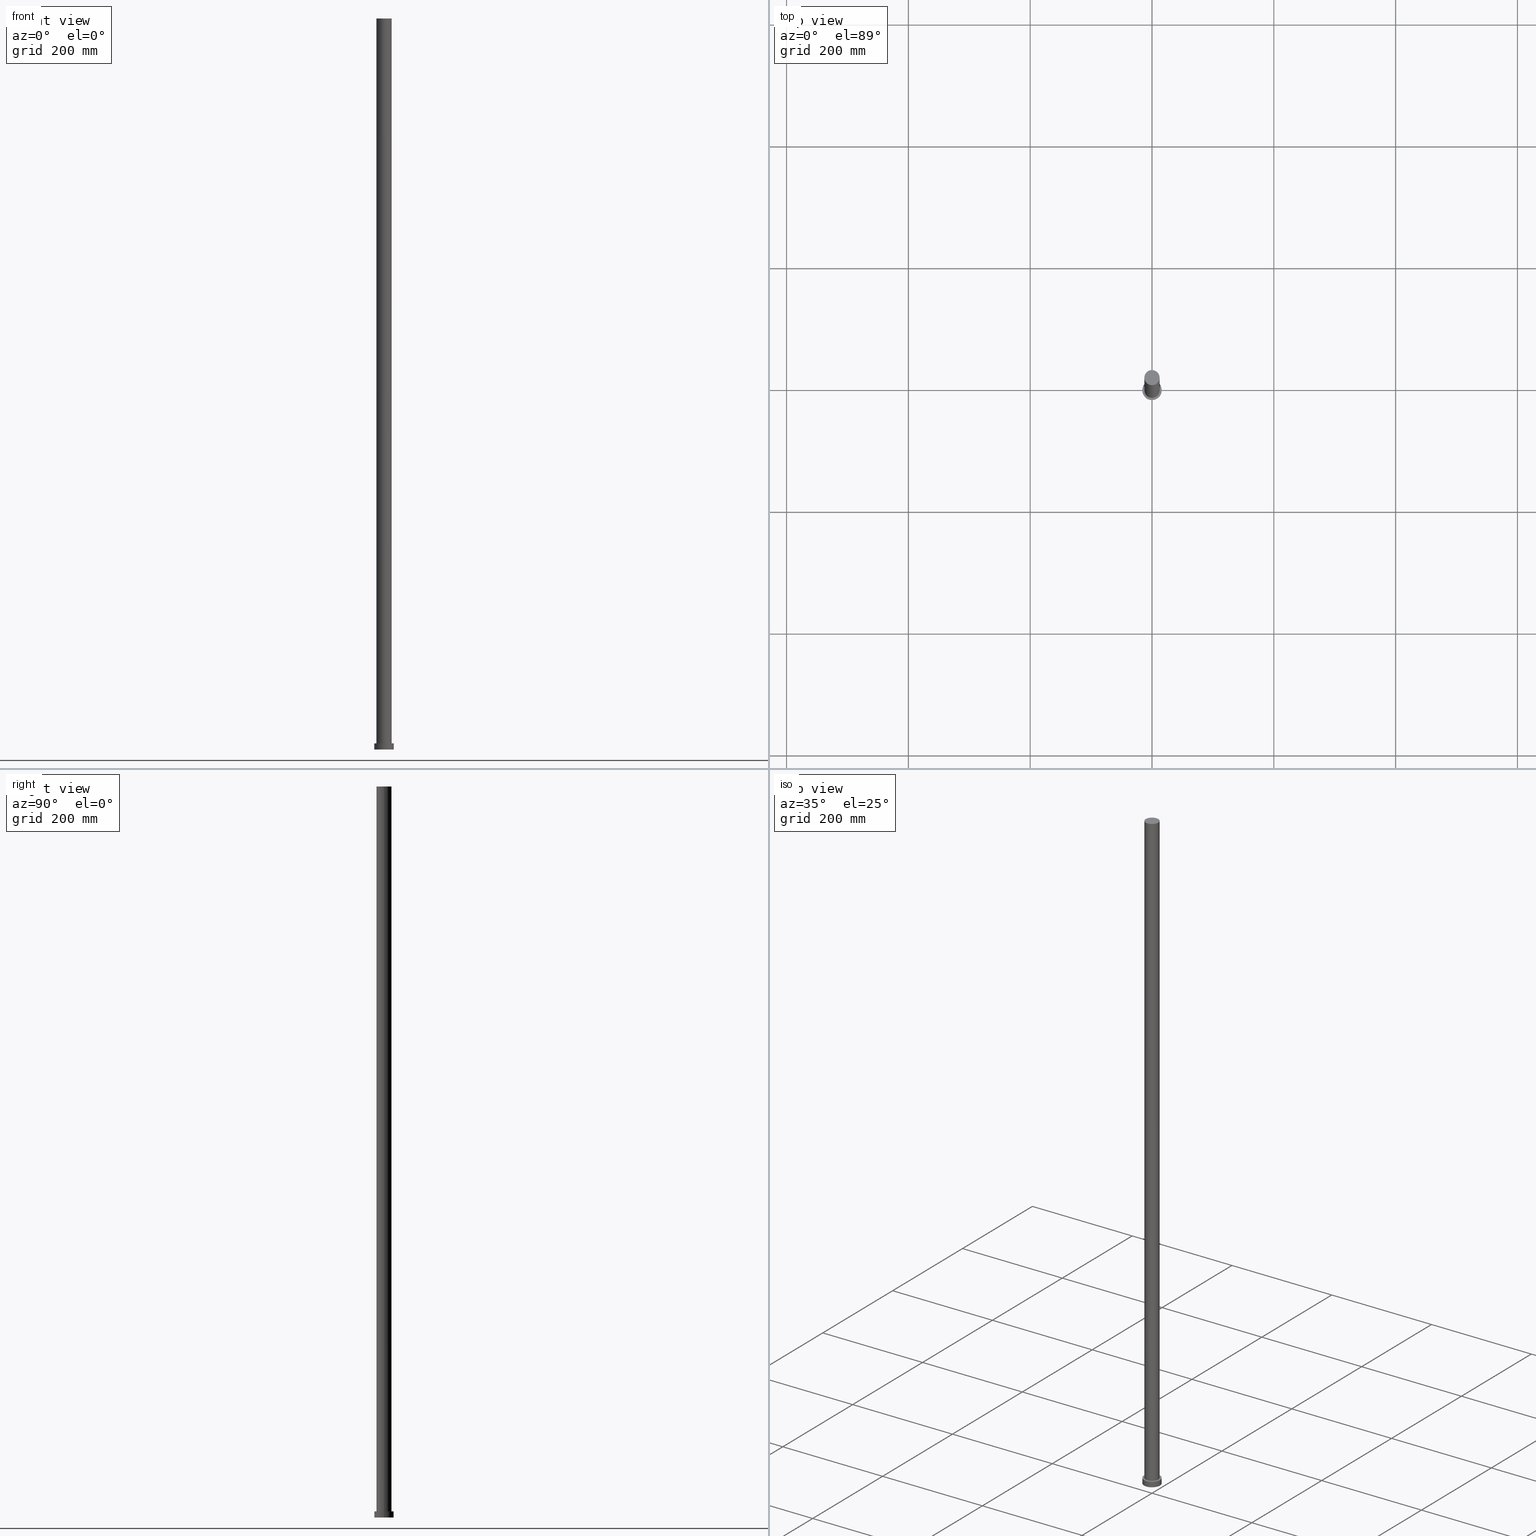
[diagram: canonical four-view strip — front | top / right | iso, engineering-drawing reading convention]
A machine part, canonical four-view strip (front | top / right | iso — engineering-drawing reading convention). The complete STEP part file that produces these views, byte-faithful:
ISO-10303-21;
HEADER;
FILE_DESCRIPTION (( 'STEP AP203' ),
    '1' );
FILE_NAME ('4acb.STEP',
    '2023-02-12T10:27:38',
    ( '' ),
    ( '' ),
    'SwSTEP 2.0',
    'SolidWorks 2019',
    '' );
FILE_SCHEMA (( 'CONFIG_CONTROL_DESIGN' ));
ENDSEC;

DATA;
#1 = EDGE_LOOP ( 'NONE', ( #230, #235, #72, #237 ) ) ;
#2 = CARTESIAN_POINT ( 'NONE',  ( 16.00000000000000000, 1.959434878635765131E-15, 10.00000000000000000 ) ) ;
#3 = EDGE_CURVE ( 'NONE', #148, #115, #66, .T. ) ;
#4 = DIRECTION ( 'NONE',  ( 1.000000000000000000, 0.000000000000000000, 0.000000000000000000 ) ) ;
#5 = CARTESIAN_POINT ( 'NONE',  ( -12.50000000000000000, 0.000000000000000000, 1200.000000000000000 ) ) ;
#6 = DIRECTION ( 'NONE',  ( 0.000000000000000000, 0.000000000000000000, 1.000000000000000000 ) ) ;
#7 = PERSON_AND_ORGANIZATION ( #50, #181 ) ;
#8 = DIRECTION ( 'NONE',  ( -1.000000000000000000, 0.000000000000000000, 0.000000000000000000 ) ) ;
#9 = LOCAL_TIME ( 11, 27, 38.00000000000000000, #202 ) ;
#10 = AXIS2_PLACEMENT_3D ( 'NONE', #117, #175, #41 ) ;
#11 = CARTESIAN_POINT ( 'NONE',  ( 0.000000000000000000, 0.000000000000000000, 10.00000000000000000 ) ) ;
#12 = DIRECTION ( 'NONE',  ( 0.000000000000000000, 0.000000000000000000, 1.000000000000000000 ) ) ;
#13 = CARTESIAN_POINT ( 'NONE',  ( -12.50000000000000000, 0.000000000000000000, 1200.000000000000000 ) ) ;
#14 = EDGE_CURVE ( 'NONE', #96, #74, #189, .T. ) ;
#15 = PERSON_AND_ORGANIZATION ( #50, #181 ) ;
#16 = SHAPE_DEFINITION_REPRESENTATION ( #204, #236 ) ;
#17 = PRODUCT ( '4acb', '4acb', '', ( #183 ) ) ;
#18 = DATE_AND_TIME ( #248, #9 ) ;
#19 = CC_DESIGN_PERSON_AND_ORGANIZATION_ASSIGNMENT ( #68, #167, ( #195 ) ) ;
#20 = ORIENTED_EDGE ( 'NONE', *, *, #149, .T. ) ;
#21 = VERTEX_POINT ( 'NONE', #53 ) ;
#22 = CC_DESIGN_PERSON_AND_ORGANIZATION_ASSIGNMENT ( #7, #63, ( #17 ) ) ;
#23 = ORIENTED_EDGE ( 'NONE', *, *, #139, .T. ) ;
#24 = APPROVAL_PERSON_ORGANIZATION ( #15, #238, #126 ) ;
#25 = ORIENTED_EDGE ( 'NONE', *, *, #14, .F. ) ;
#26 = FACE_OUTER_BOUND ( 'NONE', #127, .T. ) ;
#27 = CLOSED_SHELL ( 'NONE', ( #128, #58, #55, #187, #250, #185, #116 ) ) ;
#28 = DIRECTION ( 'NONE',  ( 1.000000000000000000, 0.000000000000000000, 0.000000000000000000 ) ) ;
#29 = CARTESIAN_POINT ( 'NONE',  ( 12.50000000000000000, 1.530808498934191521E-15, 1200.000000000000000 ) ) ;
#30 = AXIS2_PLACEMENT_3D ( 'NONE', #39, #194, #28 ) ;
#31 = FACE_OUTER_BOUND ( 'NONE', #1, .T. ) ;
#32 = DIRECTION ( 'NONE',  ( 1.000000000000000000, 0.000000000000000000, 0.000000000000000000 ) ) ;
#33 = DATE_TIME_ROLE ( 'classification_date' ) ;
#34 = EDGE_LOOP ( 'NONE', ( #134, #25 ) ) ;
#35 = ORIENTED_EDGE ( 'NONE', *, *, #103, .T. ) ;
#36 = LINE ( 'NONE', #2, #114 ) ;
#37 = AXIS2_PLACEMENT_3D ( 'NONE', #193, #12, #200 ) ;
#38 = ORIENTED_EDGE ( 'NONE', *, *, #196, .T. ) ;
#39 = CARTESIAN_POINT ( 'NONE',  ( 0.000000000000000000, 0.000000000000000000, 0.000000000000000000 ) ) ;
#40 = CIRCLE ( 'NONE', #10, 12.50000000000000000 ) ;
#41 = DIRECTION ( 'NONE',  ( 1.000000000000000000, 0.000000000000000000, 0.000000000000000000 ) ) ;
#42 = EDGE_CURVE ( 'NONE', #21, #148, #36, .T. ) ;
#43 = LINE ( 'NONE', #13, #137 ) ;
#44 = CC_DESIGN_PERSON_AND_ORGANIZATION_ASSIGNMENT ( #186, #253, ( #209 ) ) ;
#45 = AXIS2_PLACEMENT_3D ( 'NONE', #52, #210, #192 ) ;
#46 = CC_DESIGN_APPROVAL ( #238, ( #209 ) ) ;
#47 = FACE_OUTER_BOUND ( 'NONE', #131, .T. ) ;
#48 = PERSON_AND_ORGANIZATION_ROLE ( 'creator' ) ;
#49 = CARTESIAN_POINT ( 'NONE',  ( 0.000000000000000000, 0.000000000000000000, 1200.000000000000000 ) ) ;
#50 = PERSON ( 'NEUR�EN�', 'NEUR�EN�', 'NEUR�EN�', ('NEUR�EN�'), ('NEUR�EN�'), ('NEUR�EN�') ) ;
#51 = DATE_TIME_ROLE ( 'creation_date' ) ;
#52 = CARTESIAN_POINT ( 'NONE',  ( 0.000000000000000000, 0.000000000000000000, 0.000000000000000000 ) ) ;
#53 = CARTESIAN_POINT ( 'NONE',  ( 16.00000000000000000, 1.959434878635765131E-15, 10.00000000000000000 ) ) ;
#54 = DIRECTION ( 'NONE',  ( -0.000000000000000000, -0.000000000000000000, -1.000000000000000000 ) ) ;
#55 = ADVANCED_FACE ( 'NONE', ( #26 ), #172, .T. ) ;
#56 = EDGE_LOOP ( 'NONE', ( #234, #92 ) ) ;
#57 = CARTESIAN_POINT ( 'NONE',  ( -16.00000000000000000, 0.000000000000000000, 0.000000000000000000 ) ) ;
#58 = ADVANCED_FACE ( 'NONE', ( #241 ), #135, .T. ) ;
#59 = FACE_OUTER_BOUND ( 'NONE', #93, .T. ) ;
#60 = LOCAL_TIME ( 11, 27, 38.00000000000000000, #67 ) ;
#61 = COORDINATED_UNIVERSAL_TIME_OFFSET ( 1, 0, .AHEAD. ) ;
#62 = CARTESIAN_POINT ( 'NONE',  ( 0.000000000000000000, 0.000000000000000000, 10.00000000000000000 ) ) ;
#63 = PERSON_AND_ORGANIZATION_ROLE ( 'design_owner' ) ;
#64 = DIRECTION ( 'NONE',  ( 0.000000000000000000, 0.000000000000000000, 1.000000000000000000 ) ) ;
#65 = DATE_AND_TIME ( #166, #113 ) ;
#66 = CIRCLE ( 'NONE', #45, 16.00000000000000000 ) ;
#67 = COORDINATED_UNIVERSAL_TIME_OFFSET ( 1, 0, .AHEAD. ) ;
#68 = PERSON_AND_ORGANIZATION ( #50, #181 ) ;
#69 = DIRECTION ( 'NONE',  ( 1.000000000000000000, 0.000000000000000000, -0.000000000000000000 ) ) ;
#70 = CIRCLE ( 'NONE', #212, 16.00000000000000000 ) ;
#71 = CC_DESIGN_DATE_AND_TIME_ASSIGNMENT ( #18, #51, ( #208 ) ) ;
#72 = ORIENTED_EDGE ( 'NONE', *, *, #14, .T. ) ;
#73 = VERTEX_POINT ( 'NONE', #247 ) ;
#74 = VERTEX_POINT ( 'NONE', #184 ) ;
#75 = EDGE_CURVE ( 'NONE', #73, #115, #120, .T. ) ;
#76 = APPROVAL_STATUS ( 'not_yet_approved' ) ;
#77 = CIRCLE ( 'NONE', #30, 16.00000000000000000 ) ;
#78 = DIRECTION ( 'NONE',  ( 1.000000000000000000, 0.000000000000000000, 0.000000000000000000 ) ) ;
#79 = APPLICATION_PROTOCOL_DEFINITION ( 'international standard', 'config_control_design', 1994, #173 ) ;
#80 = CARTESIAN_POINT ( 'NONE',  ( 0.000000000000000000, 0.000000000000000000, 10.00000000000000000 ) ) ;
#81 = AXIS2_PLACEMENT_3D ( 'NONE', #49, #203, #32 ) ;
#82 = CARTESIAN_POINT ( 'NONE',  ( 0.000000000000000000, 0.000000000000000000, 10.00000000000000000 ) ) ;
#83 = COORDINATED_UNIVERSAL_TIME_OFFSET ( 1, 0, .AHEAD. ) ;
#84 = DIRECTION ( 'NONE',  ( -0.000000000000000000, -0.000000000000000000, -1.000000000000000000 ) ) ;
#85 = CC_DESIGN_DATE_AND_TIME_ASSIGNMENT ( #65, #33, ( #195 ) ) ;
#86 = AXIS2_PLACEMENT_3D ( 'NONE', #162, #141, #121 ) ;
#87 = SECURITY_CLASSIFICATION_LEVEL ( 'unclassified' ) ;
#88 = EDGE_CURVE ( 'NONE', #74, #96, #227, .T. ) ;
#89 = COORDINATED_UNIVERSAL_TIME_OFFSET ( 1, 0, .AHEAD. ) ;
#90 = CC_DESIGN_PERSON_AND_ORGANIZATION_ASSIGNMENT ( #218, #145, ( #208 ) ) ;
#91 = VERTEX_POINT ( 'NONE', #216 ) ;
#92 = ORIENTED_EDGE ( 'NONE', *, *, #3, .F. ) ;
#93 = EDGE_LOOP ( 'NONE', ( #214, #23 ) ) ;
#94 = LOCAL_TIME ( 11, 27, 38.00000000000000000, #89 ) ;
#95 = EDGE_LOOP ( 'NONE', ( #129, #254, #38, #168 ) ) ;
#96 = VERTEX_POINT ( 'NONE', #122 ) ;
#97 = CARTESIAN_POINT ( 'NONE',  ( 0.000000000000000000, 0.000000000000000000, 10.00000000000000000 ) ) ;
#98 = AXIS2_PLACEMENT_3D ( 'NONE', #62, #138, #217 ) ;
#99 =( NAMED_UNIT ( * ) PLANE_ANGLE_UNIT ( ) SI_UNIT ( $, .RADIAN. ) );
#100 = CARTESIAN_POINT ( 'NONE',  ( 0.000000000000000000, 0.000000000000000000, 1200.000000000000000 ) ) ;
#101 = DIRECTION ( 'NONE',  ( -0.000000000000000000, -0.000000000000000000, -1.000000000000000000 ) ) ;
#102 = APPROVAL_DATE_TIME ( #140, #163 ) ;
#103 = EDGE_CURVE ( 'NONE', #91, #132, #40, .T. ) ;
#104 = LINE ( 'NONE', #29, #146 ) ;
#105 = PLANE ( 'NONE',  #107 ) ;
#106 = EDGE_CURVE ( 'NONE', #91, #96, #104, .T. ) ;
#107 = AXIS2_PLACEMENT_3D ( 'NONE', #109, #164, #69 ) ;
#108 = DATE_AND_TIME ( #226, #94 ) ;
#109 = CARTESIAN_POINT ( 'NONE',  ( 0.000000000000000000, 0.000000000000000000, 0.000000000000000000 ) ) ;
#110 = CC_DESIGN_SECURITY_CLASSIFICATION ( #195, ( #209 ) ) ;
#111 = EDGE_LOOP ( 'NONE', ( #171, #191, #152, #112 ) ) ;
#112 = ORIENTED_EDGE ( 'NONE', *, *, #75, .F. ) ;
#113 = LOCAL_TIME ( 11, 27, 38.00000000000000000, #83 ) ;
#114 = VECTOR ( 'NONE', #54, 1000.000000000000000 ) ;
#115 = VERTEX_POINT ( 'NONE', #57 ) ;
#116 = ADVANCED_FACE ( 'NONE', ( #47 ), #177, .T. ) ;
#117 = CARTESIAN_POINT ( 'NONE',  ( 0.000000000000000000, 0.000000000000000000, 1200.000000000000000 ) ) ;
#118 = AXIS2_PLACEMENT_3D ( 'NONE', #211, #151, #232 ) ;
#119 = MANIFOLD_SOLID_BREP ( 'P�idat vysunut�m3', #27 ) ;
#120 = LINE ( 'NONE', #142, #231 ) ;
#121 = DIRECTION ( 'NONE',  ( -1.000000000000000000, 0.000000000000000000, 0.000000000000000000 ) ) ;
#122 = CARTESIAN_POINT ( 'NONE',  ( 12.50000000000000000, 1.530808498934191521E-15, 10.00000000000000000 ) ) ;
#123 = DATE_AND_TIME ( #206, #60 ) ;
#124 = CC_DESIGN_PERSON_AND_ORGANIZATION_ASSIGNMENT ( #188, #48, ( #209 ) ) ;
#125 = LOCAL_TIME ( 11, 27, 38.00000000000000000, #61 ) ;
#126 = APPROVAL_ROLE ( '' ) ;
#127 = EDGE_LOOP ( 'NONE', ( #153, #213, #154, #20 ) ) ;
#128 = ADVANCED_FACE ( 'NONE', ( #31 ), #161, .T. ) ;
#129 = ORIENTED_EDGE ( 'NONE', *, *, #106, .F. ) ;
#130 = UNCERTAINTY_MEASURE_WITH_UNIT (LENGTH_MEASURE( 1.000000000000000082E-05 ), #207, 'distance_accuracy_value', 'NONE');
#131 = EDGE_LOOP ( 'NONE', ( #170, #35 ) ) ;
#132 = VERTEX_POINT ( 'NONE', #5 ) ;
#133 = EDGE_CURVE ( 'NONE', #73, #21, #70, .T. ) ;
#134 = ORIENTED_EDGE ( 'NONE', *, *, #88, .F. ) ;
#135 = CYLINDRICAL_SURFACE ( 'NONE', #86, 16.00000000000000000 ) ;
#136 = DIRECTION ( 'NONE',  ( -0.000000000000000000, -0.000000000000000000, -1.000000000000000000 ) ) ;
#137 = VECTOR ( 'NONE', #224, 1000.000000000000000 ) ;
#138 = DIRECTION ( 'NONE',  ( 0.000000000000000000, 0.000000000000000000, 1.000000000000000000 ) ) ;
#139 = EDGE_CURVE ( 'NONE', #21, #73, #160, .T. ) ;
#140 = DATE_AND_TIME ( #198, #125 ) ;
#141 = DIRECTION ( 'NONE',  ( -0.000000000000000000, -0.000000000000000000, -1.000000000000000000 ) ) ;
#142 = CARTESIAN_POINT ( 'NONE',  ( -16.00000000000000000, 0.000000000000000000, 10.00000000000000000 ) ) ;
#143 = APPROVAL_PERSON_ORGANIZATION ( #205, #225, #147 ) ;
#144 = FACE_OUTER_BOUND ( 'NONE', #56, .T. ) ;
#145 = PERSON_AND_ORGANIZATION_ROLE ( 'creator' ) ;
#146 = VECTOR ( 'NONE', #101, 1000.000000000000000 ) ;
#147 = APPROVAL_ROLE ( '' ) ;
#148 = VERTEX_POINT ( 'NONE', #156 ) ;
#149 = EDGE_CURVE ( 'NONE', #115, #148, #77, .T. ) ;
#150 = AXIS2_PLACEMENT_3D ( 'NONE', #11, #221, #219 ) ;
#151 = DIRECTION ( 'NONE',  ( 0.000000000000000000, 0.000000000000000000, 1.000000000000000000 ) ) ;
#152 = ORIENTED_EDGE ( 'NONE', *, *, #3, .T. ) ;
#153 = ORIENTED_EDGE ( 'NONE', *, *, #42, .F. ) ;
#154 = ORIENTED_EDGE ( 'NONE', *, *, #75, .T. ) ;
#155 = CIRCLE ( 'NONE', #81, 12.50000000000000000 ) ;
#156 = CARTESIAN_POINT ( 'NONE',  ( 16.00000000000000000, 1.959434878635765131E-15, 0.000000000000000000 ) ) ;
#157 = FACE_BOUND ( 'NONE', #34, .T. ) ;
#158 = PERSON_AND_ORGANIZATION ( #50, #181 ) ;
#159 = DIRECTION ( 'NONE',  ( -0.000000000000000000, -0.000000000000000000, -1.000000000000000000 ) ) ;
#160 = CIRCLE ( 'NONE', #190, 16.00000000000000000 ) ;
#161 = CYLINDRICAL_SURFACE ( 'NONE', #182, 12.50000000000000000 ) ;
#162 = CARTESIAN_POINT ( 'NONE',  ( 0.000000000000000000, 0.000000000000000000, 10.00000000000000000 ) ) ;
#163 = APPROVAL ( #76, 'NEUR�EN�' ) ;
#164 = DIRECTION ( 'NONE',  ( 0.000000000000000000, 0.000000000000000000, 1.000000000000000000 ) ) ;
#165 = APPROVAL_PERSON_ORGANIZATION ( #158, #163, #242 ) ;
#166 = CALENDAR_DATE ( 2023, 12, 2 ) ;
#167 = PERSON_AND_ORGANIZATION_ROLE ( 'classification_officer' ) ;
#168 = ORIENTED_EDGE ( 'NONE', *, *, #88, .T. ) ;
#169 = AXIS2_PLACEMENT_3D ( 'NONE', #178, #174, #4 ) ;
#170 = ORIENTED_EDGE ( 'NONE', *, *, #229, .T. ) ;
#171 = ORIENTED_EDGE ( 'NONE', *, *, #139, .F. ) ;
#172 = CYLINDRICAL_SURFACE ( 'NONE', #255, 16.00000000000000000 ) ;
#173 = APPLICATION_CONTEXT ( 'configuration controlled 3d designs of mechanical parts and assemblies' ) ;
#174 = DIRECTION ( 'NONE',  ( 0.000000000000000000, 0.000000000000000000, 1.000000000000000000 ) ) ;
#175 = DIRECTION ( 'NONE',  ( 0.000000000000000000, 0.000000000000000000, 1.000000000000000000 ) ) ;
#176 =( NAMED_UNIT ( * ) SI_UNIT ( $, .STERADIAN. ) SOLID_ANGLE_UNIT ( ) );
#177 = PLANE ( 'NONE',  #37 ) ;
#178 = CARTESIAN_POINT ( 'NONE',  ( 0.000000000000000000, 0.000000000000000000, 0.000000000000000000 ) ) ;
#179 = CARTESIAN_POINT ( 'NONE',  ( 0.000000000000000000, 0.000000000000000000, 1200.000000000000000 ) ) ;
#180 = FACE_OUTER_BOUND ( 'NONE', #95, .T. ) ;
#181 = ORGANIZATION ( 'NEUR�EN�', 'NEUR�EN�', '' ) ;
#182 = AXIS2_PLACEMENT_3D ( 'NONE', #179, #84, #8 ) ;
#183 = MECHANICAL_CONTEXT ( 'NONE', #233, 'mechanical' ) ;
#184 = CARTESIAN_POINT ( 'NONE',  ( -12.50000000000000000, 0.000000000000000000, 10.00000000000000000 ) ) ;
#185 = ADVANCED_FACE ( 'NONE', ( #180 ), #239, .T. ) ;
#186 = PERSON_AND_ORGANIZATION ( #50, #181 ) ;
#187 = ADVANCED_FACE ( 'NONE', ( #157, #59 ), #199, .T. ) ;
#188 = PERSON_AND_ORGANIZATION ( #50, #181 ) ;
#189 = CIRCLE ( 'NONE', #118, 12.50000000000000000 ) ;
#190 = AXIS2_PLACEMENT_3D ( 'NONE', #80, #64, #78 ) ;
#191 = ORIENTED_EDGE ( 'NONE', *, *, #42, .T. ) ;
#192 = DIRECTION ( 'NONE',  ( 1.000000000000000000, 0.000000000000000000, 0.000000000000000000 ) ) ;
#193 = CARTESIAN_POINT ( 'NONE',  ( 0.000000000000000000, 0.000000000000000000, 1200.000000000000000 ) ) ;
#194 = DIRECTION ( 'NONE',  ( 0.000000000000000000, 0.000000000000000000, 1.000000000000000000 ) ) ;
#195 = SECURITY_CLASSIFICATION ( '', '', #87 ) ;
#196 = EDGE_CURVE ( 'NONE', #132, #74, #43, .T. ) ;
#197 = DIRECTION ( 'NONE',  ( -1.000000000000000000, 0.000000000000000000, 0.000000000000000000 ) ) ;
#198 = CALENDAR_DATE ( 2023, 12, 2 ) ;
#199 = PLANE ( 'NONE',  #98 ) ;
#200 = DIRECTION ( 'NONE',  ( 1.000000000000000000, 0.000000000000000000, -0.000000000000000000 ) ) ;
#201 = CC_DESIGN_APPROVAL ( #163, ( #208 ) ) ;
#202 = COORDINATED_UNIVERSAL_TIME_OFFSET ( 1, 0, .AHEAD. ) ;
#203 = DIRECTION ( 'NONE',  ( 0.000000000000000000, 0.000000000000000000, 1.000000000000000000 ) ) ;
#204 = PRODUCT_DEFINITION_SHAPE ( 'NONE', 'NONE',  #208 ) ;
#205 = PERSON_AND_ORGANIZATION ( #50, #181 ) ;
#206 = CALENDAR_DATE ( 2023, 12, 2 ) ;
#207 =( LENGTH_UNIT ( ) NAMED_UNIT ( * ) SI_UNIT ( .MILLI., .METRE. ) );
#208 = PRODUCT_DEFINITION ( 'NEZN�M�', '', #209, #252 ) ;
#209 = PRODUCT_DEFINITION_FORMATION_WITH_SPECIFIED_SOURCE ( 'LIBOVOLN�', '', #17, .NOT_KNOWN. ) ;
#210 = DIRECTION ( 'NONE',  ( 0.000000000000000000, 0.000000000000000000, 1.000000000000000000 ) ) ;
#211 = CARTESIAN_POINT ( 'NONE',  ( 0.000000000000000000, 0.000000000000000000, 10.00000000000000000 ) ) ;
#212 = AXIS2_PLACEMENT_3D ( 'NONE', #97, #6, #215 ) ;
#213 = ORIENTED_EDGE ( 'NONE', *, *, #133, .F. ) ;
#214 = ORIENTED_EDGE ( 'NONE', *, *, #133, .T. ) ;
#215 = DIRECTION ( 'NONE',  ( 1.000000000000000000, 0.000000000000000000, 0.000000000000000000 ) ) ;
#216 = CARTESIAN_POINT ( 'NONE',  ( 12.50000000000000000, 1.530808498934191521E-15, 1200.000000000000000 ) ) ;
#217 = DIRECTION ( 'NONE',  ( 1.000000000000000000, 0.000000000000000000, -0.000000000000000000 ) ) ;
#218 = PERSON_AND_ORGANIZATION ( #50, #181 ) ;
#219 = DIRECTION ( 'NONE',  ( 1.000000000000000000, 0.000000000000000000, 0.000000000000000000 ) ) ;
#220 = PRODUCT_RELATED_PRODUCT_CATEGORY ( 'detail', '', ( #17 ) ) ;
#221 = DIRECTION ( 'NONE',  ( 0.000000000000000000, 0.000000000000000000, 1.000000000000000000 ) ) ;
#222 = AXIS2_PLACEMENT_3D ( 'NONE', #100, #243, #245 ) ;
#223 = APPROVAL_DATE_TIME ( #108, #238 ) ;
#224 = DIRECTION ( 'NONE',  ( -0.000000000000000000, -0.000000000000000000, -1.000000000000000000 ) ) ;
#225 = APPROVAL ( #251, 'NEUR�EN�' ) ;
#226 = CALENDAR_DATE ( 2023, 12, 2 ) ;
#227 = CIRCLE ( 'NONE', #150, 12.50000000000000000 ) ;
#228 = APPROVAL_STATUS ( 'not_yet_approved' ) ;
#229 = EDGE_CURVE ( 'NONE', #132, #91, #155, .T. ) ;
#230 = ORIENTED_EDGE ( 'NONE', *, *, #103, .F. ) ;
#231 = VECTOR ( 'NONE', #159, 1000.000000000000000 ) ;
#232 = DIRECTION ( 'NONE',  ( 1.000000000000000000, 0.000000000000000000, 0.000000000000000000 ) ) ;
#233 = APPLICATION_CONTEXT ( 'configuration controlled 3d designs of mechanical parts and assemblies' ) ;
#234 = ORIENTED_EDGE ( 'NONE', *, *, #149, .F. ) ;
#235 = ORIENTED_EDGE ( 'NONE', *, *, #106, .T. ) ;
#236 = ADVANCED_BREP_SHAPE_REPRESENTATION ( '4acb', ( #119, #169 ), #244 ) ;
#237 = ORIENTED_EDGE ( 'NONE', *, *, #196, .F. ) ;
#238 = APPROVAL ( #228, 'NEUR�EN�' ) ;
#239 = CYLINDRICAL_SURFACE ( 'NONE', #222, 12.50000000000000000 ) ;
#240 = APPLICATION_PROTOCOL_DEFINITION ( 'international standard', 'config_control_design', 1994, #233 ) ;
#241 = FACE_OUTER_BOUND ( 'NONE', #111, .T. ) ;
#242 = APPROVAL_ROLE ( '' ) ;
#243 = DIRECTION ( 'NONE',  ( -0.000000000000000000, -0.000000000000000000, -1.000000000000000000 ) ) ;
#244 =( GEOMETRIC_REPRESENTATION_CONTEXT ( 3 ) GLOBAL_UNCERTAINTY_ASSIGNED_CONTEXT ( ( #130 ) ) GLOBAL_UNIT_ASSIGNED_CONTEXT ( ( #207, #99, #176 ) ) REPRESENTATION_CONTEXT ( 'NONE', 'WORKASPACE' ) );
#245 = DIRECTION ( 'NONE',  ( -1.000000000000000000, 0.000000000000000000, 0.000000000000000000 ) ) ;
#246 = APPROVAL_DATE_TIME ( #123, #225 ) ;
#247 = CARTESIAN_POINT ( 'NONE',  ( -16.00000000000000000, 0.000000000000000000, 10.00000000000000000 ) ) ;
#248 = CALENDAR_DATE ( 2023, 12, 2 ) ;
#249 = CC_DESIGN_APPROVAL ( #225, ( #195 ) ) ;
#250 = ADVANCED_FACE ( 'NONE', ( #144 ), #105, .F. ) ;
#251 = APPROVAL_STATUS ( 'not_yet_approved' ) ;
#252 = DESIGN_CONTEXT ( 'detailed design', #173, 'design' ) ;
#253 = PERSON_AND_ORGANIZATION_ROLE ( 'design_supplier' ) ;
#254 = ORIENTED_EDGE ( 'NONE', *, *, #229, .F. ) ;
#255 = AXIS2_PLACEMENT_3D ( 'NONE', #82, #136, #197 ) ;
ENDSEC;
END-ISO-10303-21;
